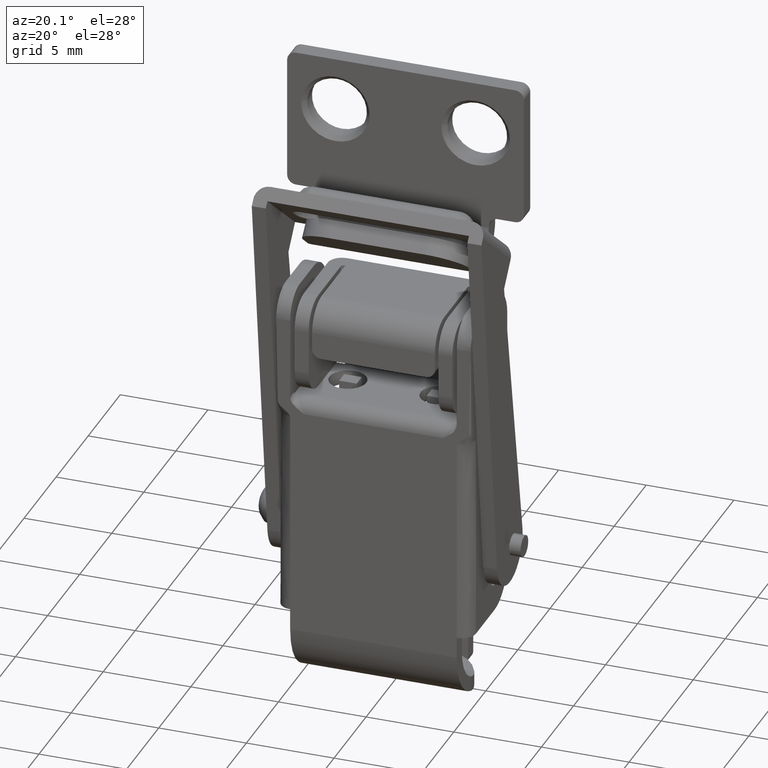
[diagram: clean part render]
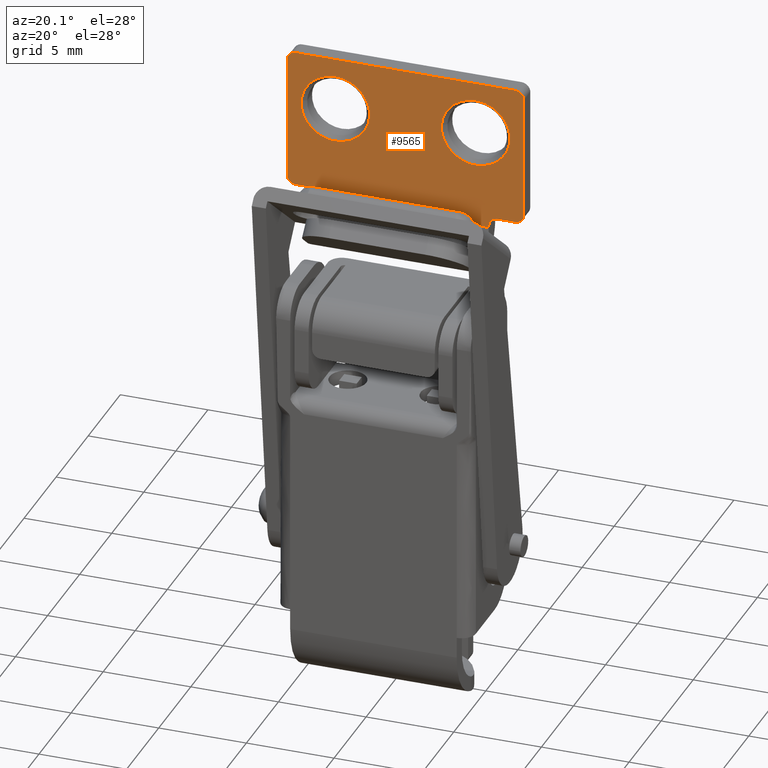
[diagram: same view with one face highlighted and labeled with its STEP entity id]
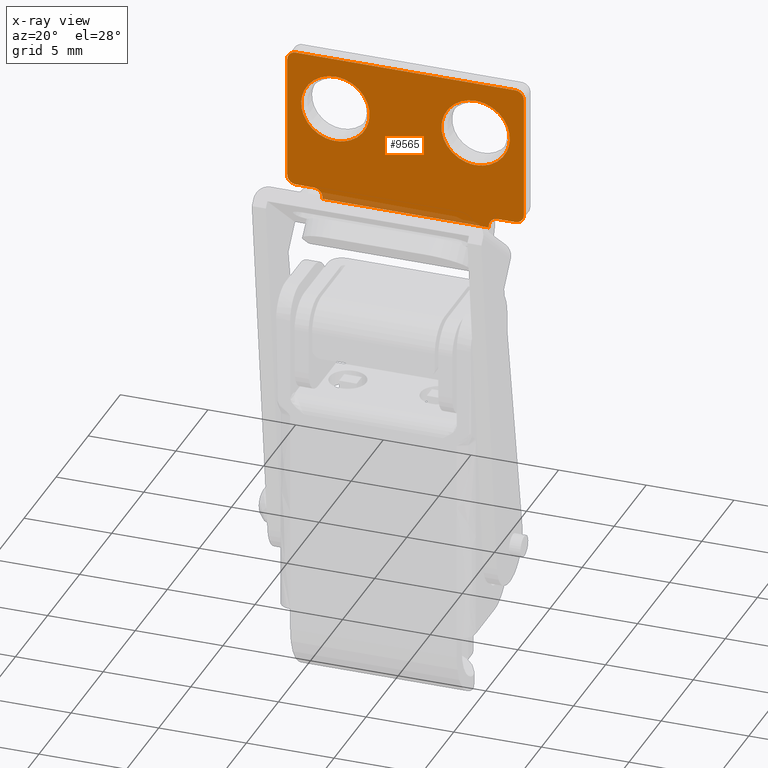
[diagram: x-ray of the same camera — body ghosted, the highlighted face saturated]
A machine part, auxiliary view. The second image highlights one B-rep face of the part: STEP entity #9565.
The next image is the same camera in x-ray: the body ghosted, the highlighted face saturated — about 3% of this face is hidden behind the body in this view.
In plain terms, the highlighted face is a freeform B-spline surface patch.
Its self-contained STEP definition (entity closure, byte-faithful):
#7997=CARTESIAN_POINT('',(-2.053645143076282,1.150008999997931,23.815854347891921));
#7998=VERTEX_POINT('',#7997);
#8004=CARTESIAN_POINT('',(-4.000008000000000,1.150008999999922,25.884898999999901));
#8005=VERTEX_POINT('',#8004);
#8006=CARTESIAN_POINT('',(-2.053645143076282,1.150008999997931,23.815854347891925));
#8007=CARTESIAN_POINT('',(-2.050007999998041,1.150008999997959,23.875321111560066));
#8008=CARTESIAN_POINT('',(-2.050007999998071,1.150008999997990,23.934898999999781));
#8009=CARTESIAN_POINT('',(-2.050007999999065,1.150008999998986,25.884898999999841));
#8010=CARTESIAN_POINT('',(-4.000008000000000,1.150008999999922,25.884898999999901));
#8018=(BOUNDED_CURVE()B_SPLINE_CURVE(2,(#8006,#8007,#8008,#8009,#8010),.UNSPECIFIED.,.F.,.U.)B_SPLINE_CURVE_WITH_KNOTS((3,2,3),(0.239332962240649,0.250000000000000,0.500000000000000),.UNSPECIFIED.)CURVE()GEOMETRIC_REPRESENTATION_ITEM()RATIONAL_B_SPLINE_CURVE((0.976072041670373,0.987502787901836,1.0,0.707106781186548,1.0))REPRESENTATION_ITEM(''));
#8019=EDGE_CURVE('',#7998,#8005,#8018,.T.);
#8021=CARTESIAN_POINT('',(-5.946370856923719,1.150008999997931,24.053943652107890));
#8022=VERTEX_POINT('',#8021);
#8023=CARTESIAN_POINT('',(-4.000008000000000,1.150008999999922,25.884898999999901));
#8024=CARTESIAN_POINT('',(-5.834384830453040,1.150008999998927,25.884898999999958));
#8025=CARTESIAN_POINT('',(-5.946370856923719,1.150008999997932,24.053943652107886));
#8033=(BOUNDED_CURVE()B_SPLINE_CURVE(2,(#8023,#8024,#8025),.UNSPECIFIED.,.F.,.U.)B_SPLINE_CURVE_WITH_KNOTS((3,3),(0.500000000000000,0.739332962240648),.UNSPECIFIED.)CURVE()GEOMETRIC_REPRESENTATION_ITEM()RATIONAL_B_SPLINE_CURVE((1.0,0.719603993284712,0.976072041670373))REPRESENTATION_ITEM(''));
#8034=EDGE_CURVE('',#8005,#8022,#8033,.T.);
#8126=CARTESIAN_POINT('',(-4.000008000000000,1.150008999999922,21.984898999999899));
#8127=VERTEX_POINT('',#8126);
#8128=CARTESIAN_POINT('',(-5.946370856923719,1.150008999997931,24.053943652107886));
#8129=CARTESIAN_POINT('',(-5.950008000001961,1.150008999997960,23.994476888439735));
#8130=CARTESIAN_POINT('',(-5.950008000001930,1.150008999997990,23.934899000000019));
#8131=CARTESIAN_POINT('',(-5.950008000000936,1.150008999998986,21.984898999999960));
#8132=CARTESIAN_POINT('',(-4.000008000000000,1.150008999999922,21.984898999999899));
#8140=(BOUNDED_CURVE()B_SPLINE_CURVE(2,(#8128,#8129,#8130,#8131,#8132),.UNSPECIFIED.,.F.,.U.)B_SPLINE_CURVE_WITH_KNOTS((3,2,3),(0.739332962240648,0.750000000000000,1.0),.UNSPECIFIED.)CURVE()GEOMETRIC_REPRESENTATION_ITEM()RATIONAL_B_SPLINE_CURVE((0.976072041670372,0.987502787901835,1.0,0.707106781186548,1.0))REPRESENTATION_ITEM(''));
#8141=EDGE_CURVE('',#8022,#8127,#8140,.T.);
#8143=CARTESIAN_POINT('',(-4.000008000000000,1.150008999999922,21.984898999999899));
#8144=CARTESIAN_POINT('',(-2.165631169546958,1.150008999998926,21.984898999999835));
#8145=CARTESIAN_POINT('',(-2.053645143076282,1.150008999997931,23.815854347891918));
#8153=(BOUNDED_CURVE()B_SPLINE_CURVE(2,(#8143,#8144,#8145),.UNSPECIFIED.,.F.,.U.)B_SPLINE_CURVE_WITH_KNOTS((3,3),(0.0,0.239332962240649),.UNSPECIFIED.)CURVE()GEOMETRIC_REPRESENTATION_ITEM()RATIONAL_B_SPLINE_CURVE((1.0,0.719603993284712,0.976072041670373))REPRESENTATION_ITEM(''));
#8154=EDGE_CURVE('',#8127,#7998,#8153,.T.);
#8301=CARTESIAN_POINT('',(5.946354856923717,1.150008999997931,23.815854347891921));
#8302=VERTEX_POINT('',#8301);
#8308=CARTESIAN_POINT('',(3.999992000000000,1.150008999999922,25.884898999999901));
#8309=VERTEX_POINT('',#8308);
#8310=CARTESIAN_POINT('',(5.946354856923717,1.150008999997930,23.815854347891918));
#8311=CARTESIAN_POINT('',(5.949992000001959,1.150008999997959,23.875321111560062));
#8312=CARTESIAN_POINT('',(5.949992000001929,1.150008999997990,23.934898999999788));
#8313=CARTESIAN_POINT('',(5.949992000000935,1.150008999998985,25.884898999999852));
#8314=CARTESIAN_POINT('',(3.999992000000000,1.150008999999922,25.884898999999901));
#8322=(BOUNDED_CURVE()B_SPLINE_CURVE(2,(#8310,#8311,#8312,#8313,#8314),.UNSPECIFIED.,.F.,.U.)B_SPLINE_CURVE_WITH_KNOTS((3,2,3),(0.239332962240648,0.250000000000000,0.500000000000000),.UNSPECIFIED.)CURVE()GEOMETRIC_REPRESENTATION_ITEM()RATIONAL_B_SPLINE_CURVE((0.976072041670372,0.987502787901835,1.0,0.707106781186548,1.0))REPRESENTATION_ITEM(''));
#8323=EDGE_CURVE('',#8302,#8309,#8322,.T.);
#8325=CARTESIAN_POINT('',(2.053629143076282,1.150008999997931,24.053943652107890));
#8326=VERTEX_POINT('',#8325);
#8327=CARTESIAN_POINT('',(3.999992000000000,1.150008999999922,25.884898999999901));
#8328=CARTESIAN_POINT('',(2.165615169546964,1.150008999998927,25.884898999999969));
#8329=CARTESIAN_POINT('',(2.053629143076283,1.150008999997932,24.053943652107893));
#8337=(BOUNDED_CURVE()B_SPLINE_CURVE(2,(#8327,#8328,#8329),.UNSPECIFIED.,.F.,.U.)B_SPLINE_CURVE_WITH_KNOTS((3,3),(0.500000000000000,0.739332962240648),.UNSPECIFIED.)CURVE()GEOMETRIC_REPRESENTATION_ITEM()RATIONAL_B_SPLINE_CURVE((1.0,0.719603993284712,0.976072041670372))REPRESENTATION_ITEM(''));
#8338=EDGE_CURVE('',#8309,#8326,#8337,.T.);
#8430=CARTESIAN_POINT('',(3.999992000000000,1.150008999999922,21.984898999999899));
#8431=VERTEX_POINT('',#8430);
#8432=CARTESIAN_POINT('',(2.053629143076282,1.150008999997931,24.053943652107886));
#8433=CARTESIAN_POINT('',(2.049991999998040,1.150008999997960,23.994476888439735));
#8434=CARTESIAN_POINT('',(2.049991999998071,1.150008999997990,23.934899000000019));
#8435=CARTESIAN_POINT('',(2.049991999999065,1.150008999998986,21.984898999999960));
#8436=CARTESIAN_POINT('',(3.999992000000000,1.150008999999922,21.984898999999899));
#8444=(BOUNDED_CURVE()B_SPLINE_CURVE(2,(#8432,#8433,#8434,#8435,#8436),.UNSPECIFIED.,.F.,.U.)B_SPLINE_CURVE_WITH_KNOTS((3,2,3),(0.739332962240648,0.750000000000000,1.0),.UNSPECIFIED.)CURVE()GEOMETRIC_REPRESENTATION_ITEM()RATIONAL_B_SPLINE_CURVE((0.976072041670372,0.987502787901835,1.0,0.707106781186548,1.0))REPRESENTATION_ITEM(''));
#8445=EDGE_CURVE('',#8326,#8431,#8444,.T.);
#8447=CARTESIAN_POINT('',(3.999992000000000,1.150008999999922,21.984898999999899));
#8448=CARTESIAN_POINT('',(5.834368830453041,1.150008999998926,21.984898999999839));
#8449=CARTESIAN_POINT('',(5.946354856923718,1.150008999997931,23.815854347891918));
#8457=(BOUNDED_CURVE()B_SPLINE_CURVE(2,(#8447,#8448,#8449),.UNSPECIFIED.,.F.,.U.)B_SPLINE_CURVE_WITH_KNOTS((3,3),(0.0,0.239332962240648),.UNSPECIFIED.)CURVE()GEOMETRIC_REPRESENTATION_ITEM()RATIONAL_B_SPLINE_CURVE((1.0,0.719603993284712,0.976072041670373))REPRESENTATION_ITEM(''));
#8458=EDGE_CURVE('',#8431,#8302,#8457,.T.);
#8985=CARTESIAN_POINT('',(-6.750000000000000,1.150008999999926,19.434899000000001));
#8986=VERTEX_POINT('',#8985);
#8987=CARTESIAN_POINT('',(-6.250000000000000,1.150008999999926,18.934899000000001));
#8988=VERTEX_POINT('',#8987);
#8989=CARTESIAN_POINT('',(-6.750000000000001,1.150008999999926,19.434899000000001));
#8990=CARTESIAN_POINT('',(-6.750000000000001,1.150008999999926,18.934899000000005));
#8991=CARTESIAN_POINT('',(-6.250000000000000,1.150008999999926,18.934899000000001));
#8999=(BOUNDED_CURVE()B_SPLINE_CURVE(2,(#8989,#8990,#8991),.UNSPECIFIED.,.F.,.U.)CURVE()GEOMETRIC_REPRESENTATION_ITEM()QUASI_UNIFORM_CURVE()RATIONAL_B_SPLINE_CURVE((1.0,0.707106781186548,1.0))REPRESENTATION_ITEM(''));
#9000=EDGE_CURVE('',#8986,#8988,#8999,.T.);
#9030=CARTESIAN_POINT('',(-6.250000000000000,1.150008999999926,26.934898999999898));
#9031=VERTEX_POINT('',#9030);
#9032=CARTESIAN_POINT('',(-6.750000000000000,1.150008999999926,26.434898999999898));
#9033=VERTEX_POINT('',#9032);
#9034=CARTESIAN_POINT('',(-6.250000000000000,1.150008999999926,26.934898999999898));
#9035=CARTESIAN_POINT('',(-6.750000000000001,1.150008999999926,26.934898999999902));
#9036=CARTESIAN_POINT('',(-6.750000000000001,1.150008999999926,26.434898999999898));
#9044=(BOUNDED_CURVE()B_SPLINE_CURVE(2,(#9034,#9035,#9036),.UNSPECIFIED.,.F.,.U.)CURVE()GEOMETRIC_REPRESENTATION_ITEM()QUASI_UNIFORM_CURVE()RATIONAL_B_SPLINE_CURVE((1.0,0.707106781186548,1.0))REPRESENTATION_ITEM(''));
#9045=EDGE_CURVE('',#9031,#9033,#9044,.T.);
#9075=CARTESIAN_POINT('',(6.749992000000000,1.150008999999926,26.434898999999898));
#9076=VERTEX_POINT('',#9075);
#9077=CARTESIAN_POINT('',(6.249992000000001,1.150008999999926,26.934898999999898));
#9078=VERTEX_POINT('',#9077);
#9079=CARTESIAN_POINT('',(6.749992000000000,1.150008999999926,26.434898999999898));
#9080=CARTESIAN_POINT('',(6.749992000000000,1.150008999999926,26.934898999999902));
#9081=CARTESIAN_POINT('',(6.249992000000001,1.150008999999926,26.934898999999898));
#9089=(BOUNDED_CURVE()B_SPLINE_CURVE(2,(#9079,#9080,#9081),.UNSPECIFIED.,.F.,.U.)CURVE()GEOMETRIC_REPRESENTATION_ITEM()QUASI_UNIFORM_CURVE()RATIONAL_B_SPLINE_CURVE((1.0,0.707106781186548,1.0))REPRESENTATION_ITEM(''));
#9090=EDGE_CURVE('',#9076,#9078,#9089,.T.);
#9120=CARTESIAN_POINT('',(6.249992000000001,1.150008999999926,18.934899000000001));
#9121=VERTEX_POINT('',#9120);
#9122=CARTESIAN_POINT('',(6.749992000000000,1.150008999999926,19.434899000000001));
#9123=VERTEX_POINT('',#9122);
#9124=CARTESIAN_POINT('',(6.249992000000001,1.150008999999926,18.934899000000001));
#9125=CARTESIAN_POINT('',(6.749992000000000,1.150008999999926,18.934899000000005));
#9126=CARTESIAN_POINT('',(6.749992000000000,1.150008999999926,19.434899000000001));
#9134=(BOUNDED_CURVE()B_SPLINE_CURVE(2,(#9124,#9125,#9126),.UNSPECIFIED.,.F.,.U.)CURVE()GEOMETRIC_REPRESENTATION_ITEM()QUASI_UNIFORM_CURVE()RATIONAL_B_SPLINE_CURVE((1.0,0.707106781186548,1.0))REPRESENTATION_ITEM(''));
#9135=EDGE_CURVE('',#9121,#9123,#9134,.T.);
#9165=CARTESIAN_POINT('',(4.749991999999930,1.150008999999926,18.434899000000001));
#9166=VERTEX_POINT('',#9165);
#9167=CARTESIAN_POINT('',(5.249992000000000,1.150008999999926,18.934899000000001));
#9168=VERTEX_POINT('',#9167);
#9169=CARTESIAN_POINT('',(4.749991999999930,1.150008999999926,18.434899000000001));
#9170=CARTESIAN_POINT('',(4.749991999999999,1.150008999999926,18.934899000000005));
#9171=CARTESIAN_POINT('',(5.249992000000000,1.150008999999926,18.934899000000001));
#9179=(BOUNDED_CURVE()B_SPLINE_CURVE(2,(#9169,#9170,#9171),.UNSPECIFIED.,.F.,.U.)CURVE()GEOMETRIC_REPRESENTATION_ITEM()QUASI_UNIFORM_CURVE()RATIONAL_B_SPLINE_CURVE((1.0,0.707106781186548,1.0))REPRESENTATION_ITEM(''));
#9180=EDGE_CURVE('',#9166,#9168,#9179,.T.);
#9210=CARTESIAN_POINT('',(-5.249992000000000,1.150008999999926,18.934899000000001));
#9211=VERTEX_POINT('',#9210);
#9212=CARTESIAN_POINT('',(-4.749991999999930,1.150008999999926,18.434899000000001));
#9213=VERTEX_POINT('',#9212);
#9214=CARTESIAN_POINT('',(-5.249992000000000,1.150008999999926,18.934899000000001));
#9215=CARTESIAN_POINT('',(-4.749991999999999,1.150008999999926,18.934899000000005));
#9216=CARTESIAN_POINT('',(-4.749992000000000,1.150008999999926,18.434899000000001));
#9224=(BOUNDED_CURVE()B_SPLINE_CURVE(2,(#9214,#9215,#9216),.UNSPECIFIED.,.F.,.U.)CURVE()GEOMETRIC_REPRESENTATION_ITEM()QUASI_UNIFORM_CURVE()RATIONAL_B_SPLINE_CURVE((1.0,0.707106781186548,1.0))REPRESENTATION_ITEM(''));
#9225=EDGE_CURVE('',#9211,#9213,#9224,.T.);
#9324=CARTESIAN_POINT('',(-4.749991999999930,1.150008999999926,18.334891999999900));
#9325=VERTEX_POINT('',#9324);
#9326=CARTESIAN_POINT('',(-4.749991999999930,1.150008999999926,18.434899000000001));
#9327=CARTESIAN_POINT('',(-4.749991999999930,1.150008999999926,18.334891999999900));
#9328=QUASI_UNIFORM_CURVE('',1,(#9326,#9327),.UNSPECIFIED.,.F.,.U.);
#9329=EDGE_CURVE('',#9213,#9325,#9328,.T.);
#9369=CARTESIAN_POINT('',(-5.249992000000000,1.150008999999926,18.934899000000001));
#9370=CARTESIAN_POINT('',(-6.250000000000000,1.150008999999926,18.934899000000001));
#9371=QUASI_UNIFORM_CURVE('',1,(#9369,#9370),.UNSPECIFIED.,.F.,.U.);
#9372=EDGE_CURVE('',#9211,#8988,#9371,.T.);
#9385=CARTESIAN_POINT('',(4.749991999999930,1.150009000000000,18.334891999999900));
#9386=VERTEX_POINT('',#9385);
#9387=CARTESIAN_POINT('',(4.749991999999930,1.150009000000000,18.334891999999900));
#9388=CARTESIAN_POINT('',(4.749991999999930,1.150008999999926,18.434899000000001));
#9389=QUASI_UNIFORM_CURVE('',1,(#9387,#9388),.UNSPECIFIED.,.F.,.U.);
#9390=EDGE_CURVE('',#9386,#9166,#9389,.T.);
#9426=CARTESIAN_POINT('',(6.249992000000001,1.150008999999926,18.934899000000001));
#9427=CARTESIAN_POINT('',(5.249992000000000,1.150008999999926,18.934899000000001));
#9428=QUASI_UNIFORM_CURVE('',1,(#9426,#9427),.UNSPECIFIED.,.F.,.U.);
#9429=EDGE_CURVE('',#9121,#9168,#9428,.T.);
#9442=CARTESIAN_POINT('',(6.749992000000000,1.150008999999926,19.434899000000001));
#9443=CARTESIAN_POINT('',(6.749992000000000,1.150008999999926,26.434898999999898));
#9444=QUASI_UNIFORM_CURVE('',1,(#9442,#9443),.UNSPECIFIED.,.F.,.U.);
#9445=EDGE_CURVE('',#9123,#9076,#9444,.T.);
#9458=CARTESIAN_POINT('',(6.249992000000001,1.150008999999926,26.934898999999898));
#9459=CARTESIAN_POINT('',(-6.250000000000000,1.150008999999926,26.934898999999898));
#9460=QUASI_UNIFORM_CURVE('',1,(#9458,#9459),.UNSPECIFIED.,.F.,.U.);
#9461=EDGE_CURVE('',#9078,#9031,#9460,.T.);
#9474=CARTESIAN_POINT('',(-6.750000000000000,1.150008999999926,19.434899000000001));
#9475=CARTESIAN_POINT('',(-6.750000000000000,1.150008999999926,26.434898999999898));
#9476=QUASI_UNIFORM_CURVE('',1,(#9474,#9475),.UNSPECIFIED.,.F.,.U.);
#9477=EDGE_CURVE('',#8986,#9033,#9476,.T.);
#9521=CARTESIAN_POINT('',(4.749991999999930,1.150009000000000,18.334891999999900));
#9522=CARTESIAN_POINT('',(-4.749991999999930,1.150008999999926,18.334891999999900));
#9523=QUASI_UNIFORM_CURVE('',1,(#9521,#9522),.UNSPECIFIED.,.F.,.U.);
#9524=EDGE_CURVE('',#9386,#9325,#9523,.T.);
#9532=CARTESIAN_POINT('',(-7.424324574234396,1.150008999999926,27.364469332981422));
#9533=CARTESIAN_POINT('',(-7.424324574234396,1.150008999999926,17.905321436348220));
#9534=CARTESIAN_POINT('',(7.424316936332397,1.150008999999926,27.364469332981422));
#9535=CARTESIAN_POINT('',(7.424316936332397,1.150008999999926,17.905321436348220));
#9536=B_SPLINE_SURFACE_WITH_KNOTS('',1,1,((#9532,#9534),(#9533,#9535)),.UNSPECIFIED.,.F.,.F.,.U.,(2,2),(2,2),(0.0,9.459147896633205),(0.0,14.848641510566789),.UNSPECIFIED.);
#9537=ORIENTED_EDGE('',*,*,#9429,.F.);
#9538=ORIENTED_EDGE('',*,*,#9135,.T.);
#9539=ORIENTED_EDGE('',*,*,#9445,.T.);
#9540=ORIENTED_EDGE('',*,*,#9090,.T.);
#9541=ORIENTED_EDGE('',*,*,#9461,.T.);
#9542=ORIENTED_EDGE('',*,*,#9045,.T.);
#9543=ORIENTED_EDGE('',*,*,#9477,.F.);
#9544=ORIENTED_EDGE('',*,*,#9000,.T.);
#9545=ORIENTED_EDGE('',*,*,#9372,.F.);
#9546=ORIENTED_EDGE('',*,*,#9225,.T.);
#9547=ORIENTED_EDGE('',*,*,#9329,.T.);
#9548=ORIENTED_EDGE('',*,*,#9524,.F.);
#9549=ORIENTED_EDGE('',*,*,#9390,.T.);
#9550=ORIENTED_EDGE('',*,*,#9180,.T.);
#9551=EDGE_LOOP('',(#9537,#9538,#9539,#9540,#9541,#9542,#9543,#9544,#9545,#9546,#9547,#9548,#9549,#9550));
#9552=FACE_OUTER_BOUND('',#9551,.T.);
#9553=ORIENTED_EDGE('',*,*,#8338,.F.);
#9554=ORIENTED_EDGE('',*,*,#8323,.F.);
#9555=ORIENTED_EDGE('',*,*,#8458,.F.);
#9556=ORIENTED_EDGE('',*,*,#8445,.F.);
#9557=EDGE_LOOP('',(#9553,#9554,#9555,#9556));
#9558=FACE_BOUND('',#9557,.T.);
#9559=ORIENTED_EDGE('',*,*,#8034,.F.);
#9560=ORIENTED_EDGE('',*,*,#8019,.F.);
#9561=ORIENTED_EDGE('',*,*,#8154,.F.);
#9562=ORIENTED_EDGE('',*,*,#8141,.F.);
#9563=EDGE_LOOP('',(#9559,#9560,#9561,#9562));
#9564=FACE_BOUND('',#9563,.T.);
#9565=ADVANCED_FACE('',(#9552,#9558,#9564),#9536,.T.);